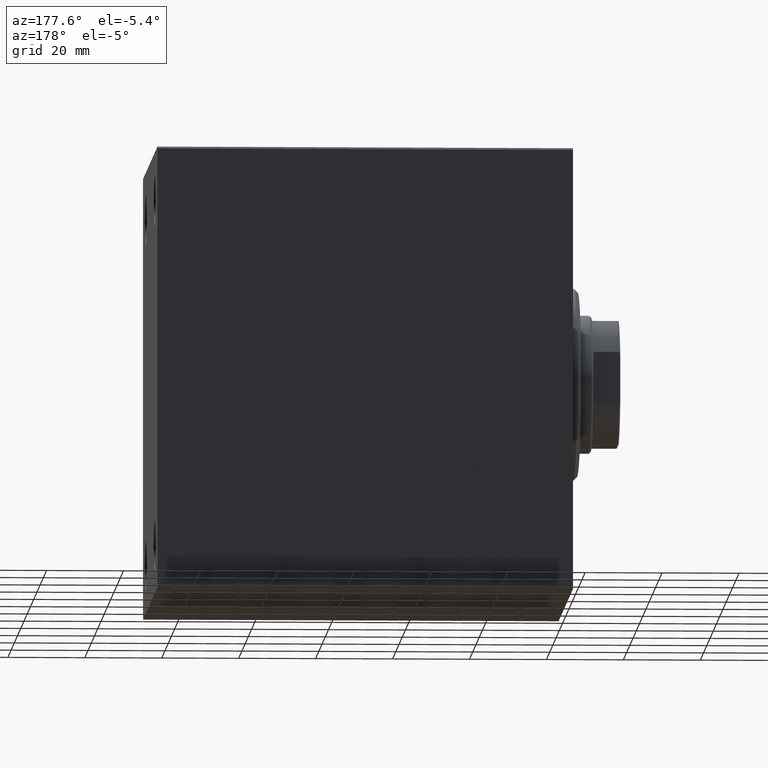
[diagram: clean part render]
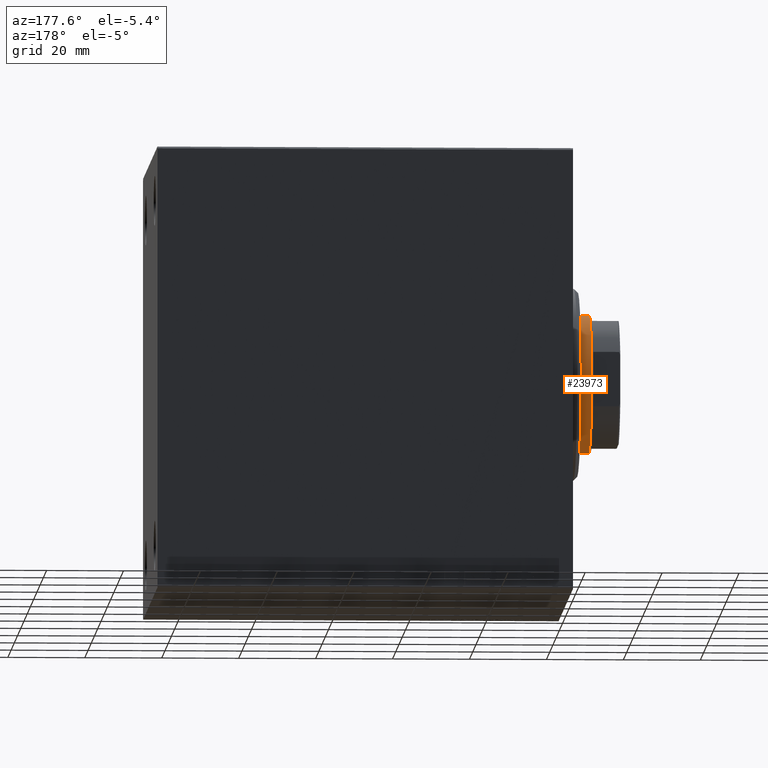
[diagram: same view with one face highlighted and labeled with its STEP entity id]
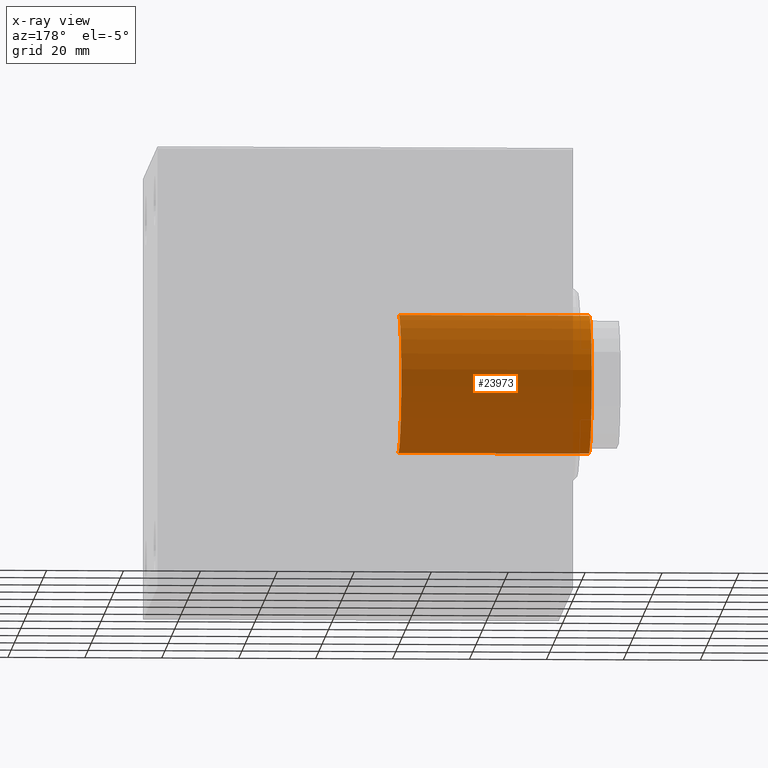
[diagram: x-ray of the same camera — body ghosted, the highlighted face saturated]
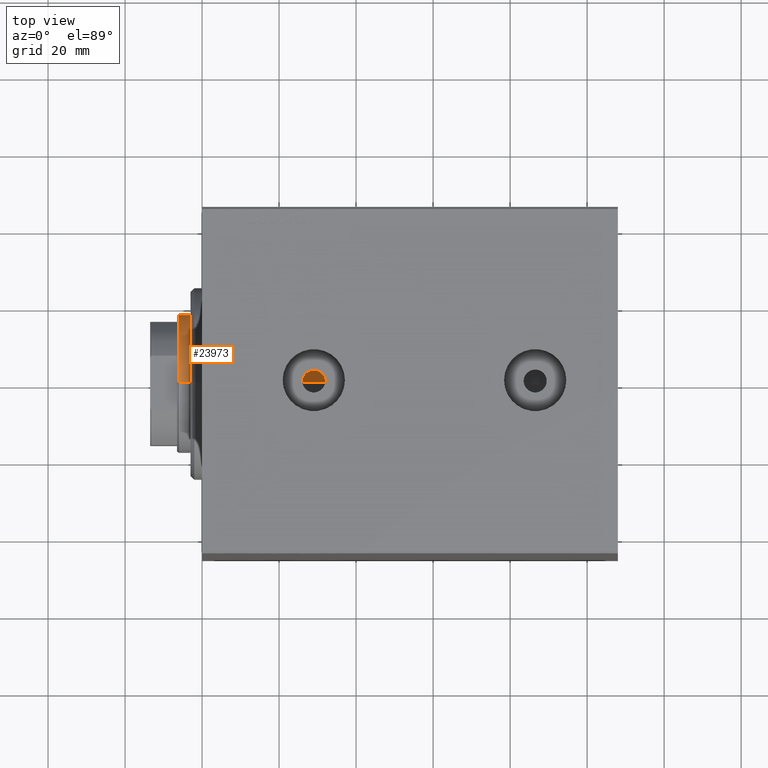
[diagram: same view with one face highlighted and labeled with its STEP entity id]
A machine part, auxiliary view. The second image highlights one B-rep face of the part: STEP entity #23973.
The next image is the same camera in x-ray: the body ghosted, the highlighted face saturated — about 90% of this face is hidden behind the body in this view.
A second angle (top view) of the same face is appended — the face is thin or edge-on in the first view.
In plain terms, the highlighted cylindrical surface (partial cylindrical patch) has radius 18 mm, axis along (1, -0, -0).
Its self-contained STEP definition (entity closure, byte-faithful):
#1453 = DIRECTION ( 'NONE',  ( -0.000000000000000000, -0.000000000000000000, -1.000000000000000000 ) ) ;
#3544 = CARTESIAN_POINT ( 'NONE',  ( 18.00000000000000000, 2.204364238465235428E-15, 96.50000000000002842 ) ) ;
#4420 = CARTESIAN_POINT ( 'NONE',  ( 18.00000000000000000, 2.204364238465235428E-15, 47.00000000000000000 ) ) ;
#5154 = VERTEX_POINT ( 'NONE', #4420 ) ;
#5407 = EDGE_CURVE ( 'NONE', #5154, #37655, #23692, .T. ) ;
#6855 = CARTESIAN_POINT ( 'NONE',  ( 0.000000000000000000, 0.000000000000000000, 47.00000000000000000 ) ) ;
#7205 = AXIS2_PLACEMENT_3D ( 'NONE', #6855, #30618, #41339 ) ;
#7521 = FACE_OUTER_BOUND ( 'NONE', #23416, .T. ) ;
#10045 = CARTESIAN_POINT ( 'NONE',  ( -18.00000000000000000, 0.000000000000000000, 47.00000000000000000 ) ) ;
#10387 = CARTESIAN_POINT ( 'NONE',  ( -18.00000000000000000, 0.000000000000000000, 97.00000000000000000 ) ) ;
#14363 = AXIS2_PLACEMENT_3D ( 'NONE', #18976, #36216, #43171 ) ;
#14463 = DIRECTION ( 'NONE',  ( -1.000000000000000000, 0.000000000000000000, 0.000000000000000000 ) ) ;
#15317 = ORIENTED_EDGE ( 'NONE', *, *, #34691, .T. ) ;
#16851 = VERTEX_POINT ( 'NONE', #3544 ) ;
#18007 = CARTESIAN_POINT ( 'NONE',  ( 18.00000000000000000, 2.204364238465235428E-15, 97.00000000000000000 ) ) ;
#18597 = ORIENTED_EDGE ( 'NONE', *, *, #25243, .T. ) ;
#18976 = CARTESIAN_POINT ( 'NONE',  ( 0.000000000000000000, 0.000000000000000000, 96.50000000000002842 ) ) ;
#20693 = DIRECTION ( 'NONE',  ( -0.000000000000000000, -0.000000000000000000, -1.000000000000000000 ) ) ;
#21144 = DIRECTION ( 'NONE',  ( -0.000000000000000000, -0.000000000000000000, -1.000000000000000000 ) ) ;
#22268 = CARTESIAN_POINT ( 'NONE',  ( -18.00000000000000000, 0.000000000000000000, 96.50000000000002842 ) ) ;
#23416 = EDGE_LOOP ( 'NONE', ( #15317, #18597, #28702, #39721 ) ) ;
#23692 = CIRCLE ( 'NONE', #7205, 18.00000000000000000 ) ;
#23973 = ADVANCED_FACE ( 'NONE', ( #7521 ), #31932, .T. ) ;
#25243 = EDGE_CURVE ( 'NONE', #16851, #5154, #28979, .T. ) ;
#26172 = VERTEX_POINT ( 'NONE', #22268 ) ;
#27861 = VECTOR ( 'NONE', #21144, 1000.000000000000000 ) ;
#28359 = CARTESIAN_POINT ( 'NONE',  ( 0.000000000000000000, 0.000000000000000000, 97.00000000000000000 ) ) ;
#28702 = ORIENTED_EDGE ( 'NONE', *, *, #5407, .T. ) ;
#28979 = LINE ( 'NONE', #18007, #27861 ) ;
#30618 = DIRECTION ( 'NONE',  ( 0.000000000000000000, 0.000000000000000000, 1.000000000000000000 ) ) ;
#31932 = CYLINDRICAL_SURFACE ( 'NONE', #37835, 18.00000000000000000 ) ;
#34691 = EDGE_CURVE ( 'NONE', #26172, #16851, #40849, .T. ) ;
#35178 = EDGE_CURVE ( 'NONE', #26172, #37655, #40851, .T. ) ;
#36216 = DIRECTION ( 'NONE',  ( 0.000000000000000000, 0.000000000000000000, -1.000000000000000000 ) ) ;
#37285 = VECTOR ( 'NONE', #20693, 1000.000000000000000 ) ;
#37655 = VERTEX_POINT ( 'NONE', #10045 ) ;
#37835 = AXIS2_PLACEMENT_3D ( 'NONE', #28359, #1453, #14463 ) ;
#39721 = ORIENTED_EDGE ( 'NONE', *, *, #35178, .F. ) ;
#40849 = CIRCLE ( 'NONE', #14363, 18.00000000000000000 ) ;
#40851 = LINE ( 'NONE', #10387, #37285 ) ;
#41339 = DIRECTION ( 'NONE',  ( 1.000000000000000000, 0.000000000000000000, 0.000000000000000000 ) ) ;
#43171 = DIRECTION ( 'NONE',  ( 1.000000000000000000, 0.000000000000000000, 0.000000000000000000 ) ) ;